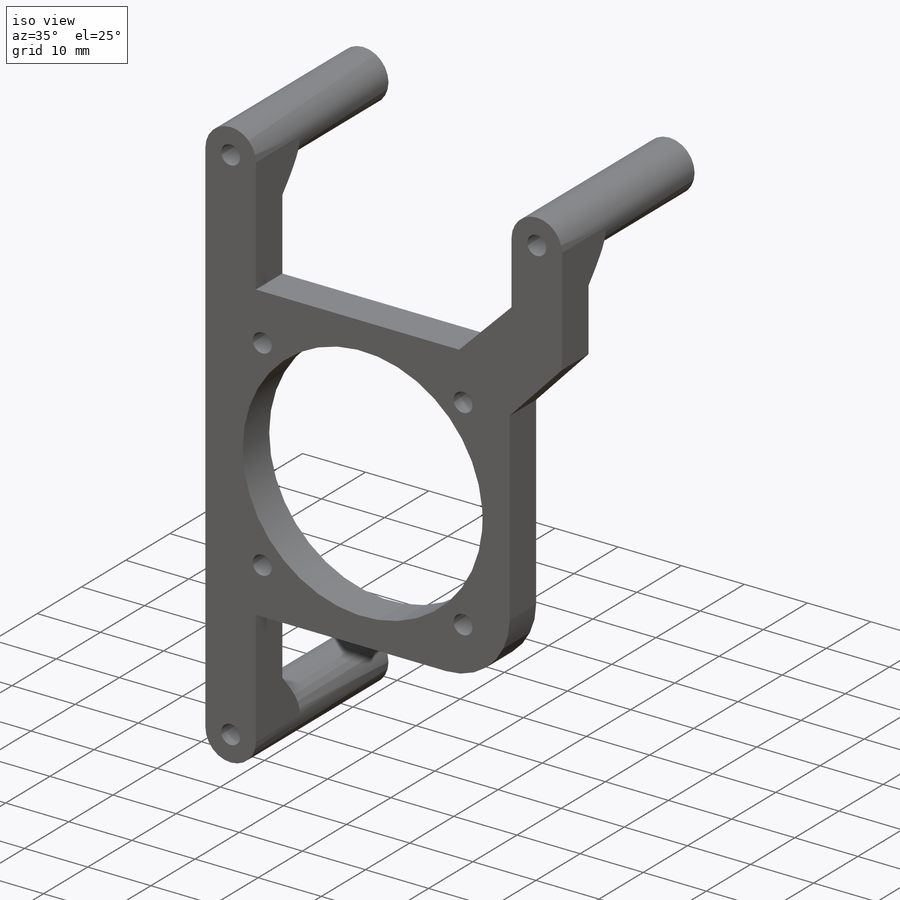
[diagram: iso view]
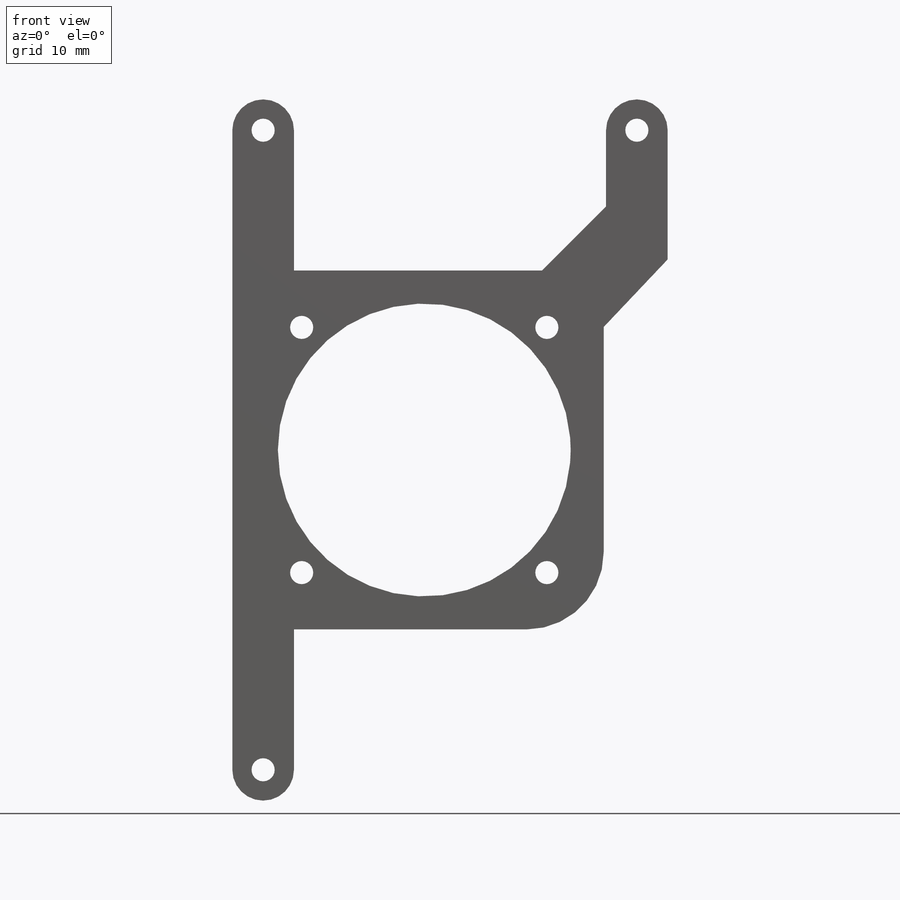
[diagram: front view]
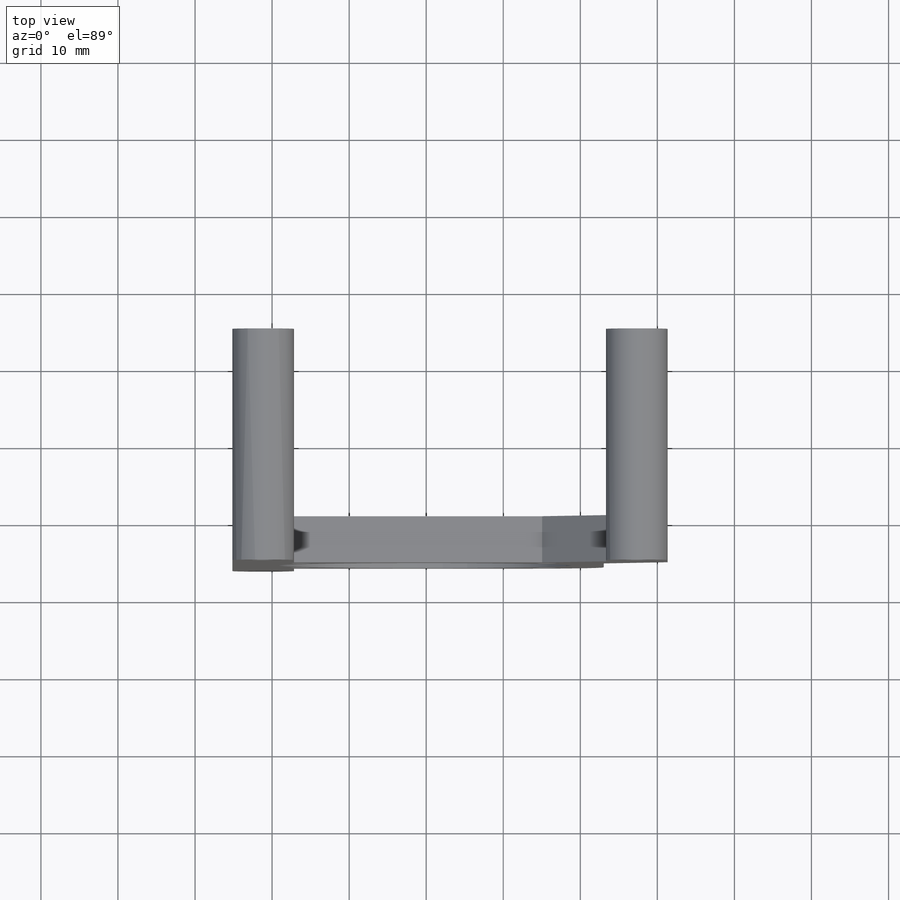
[diagram: top view]
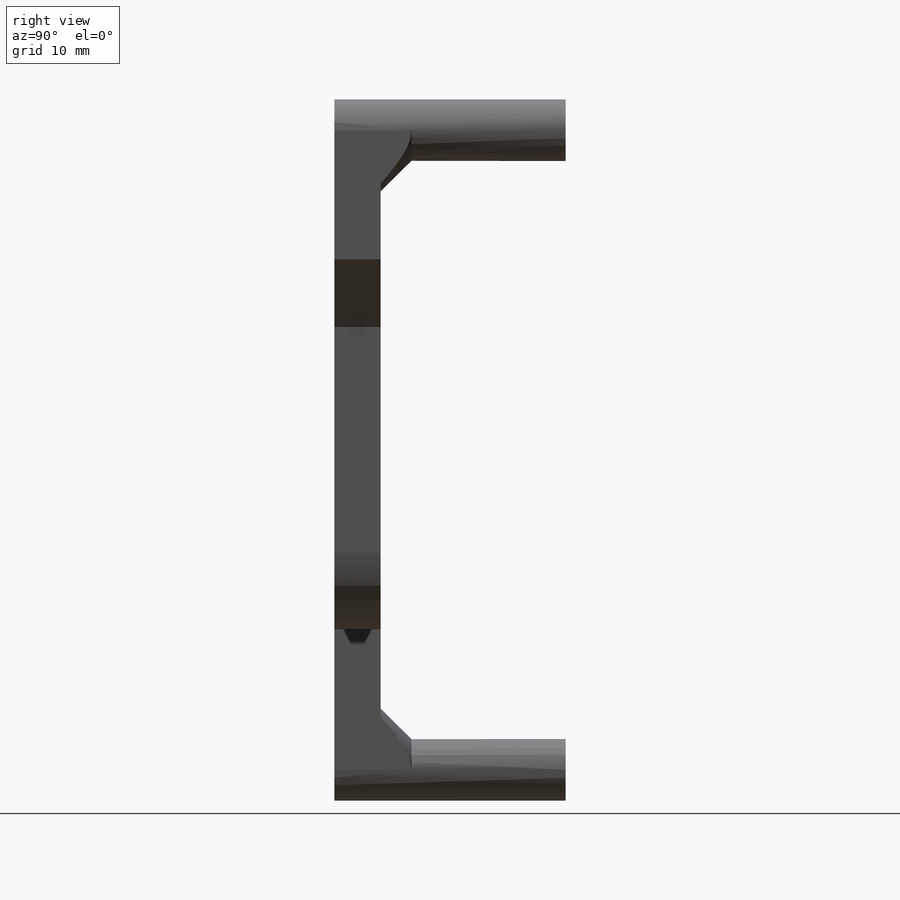
[diagram: right view]
SOLIDWORKS PART (.sldprt)
format: sldprt  version: not decoded by parser v0  size: 248,832 bytes
history: native  units: mm
features: plane x3, chamfer x3, sketch x2, extrude x2, material x1, fillet x1 (+10 scaffold rows collapsed)
feature tree (22):
  scaffold x10  (default folders/planes/origin — collapsed)
  material  "材质 <未指定>"
  plane  "前视基准面"
  plane  "上视基准面"
  plane  "右视基准面"
  sketch  "草图1"  dims[D1=23.29mm]
  extrude  "凸台-拉伸1"  Depth=6mm
  fillet  "圆角1"  Radius=10mm
  sketch  "草图2"  dims[D1=~1.474636mm]
  extrude  "凸台-拉伸2"  Depth=24mm
  chamfer  "倒角1"  Distance=4mm Angle=45deg
  chamfer  "倒角2"  Distance=4mm Angle=45deg
  chamfer  "倒角3"  Distance=4mm Angle=45deg
decode coverage: 8 of 8 modeling features carry decoded parameters
note: ~ marks probable driven/reference dimensions
note: suppression state not decoded; provenance and decode notes live in map.json
